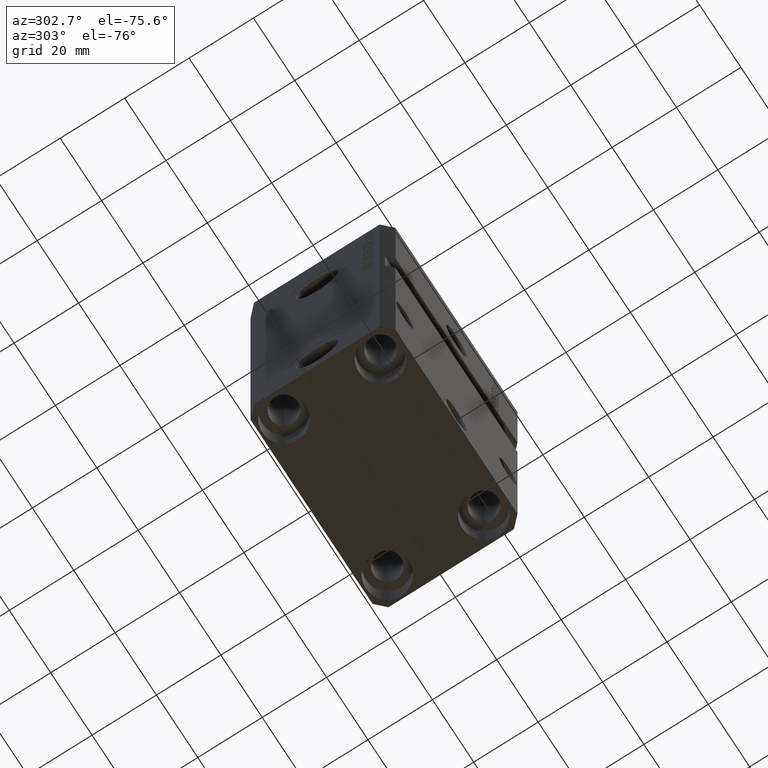
[diagram: clean part render]
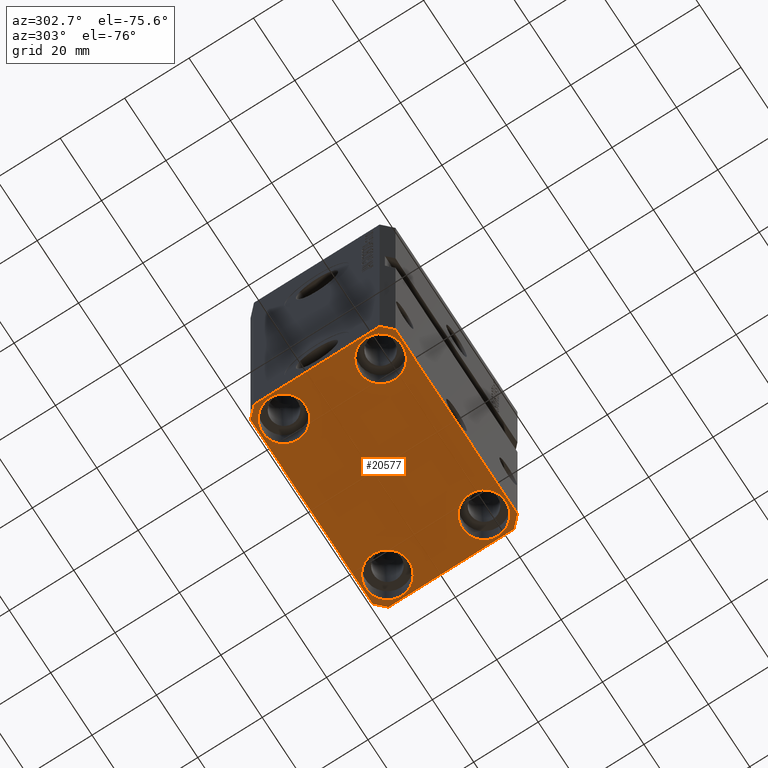
[diagram: same view with one face highlighted and labeled with its STEP entity id]
A machine part, auxiliary view. The second image highlights one B-rep face of the part: STEP entity #20577.
In plain terms, the highlighted planar face has unit normal (0, 0, 1).
Its self-contained STEP definition (entity closure, byte-faithful):
#287 = EDGE_CURVE ( 'NONE', #46769, #42714, #3144, .T. ) ;
#647 = FACE_BOUND ( 'NONE', #47999, .T. ) ;
#694 = CARTESIAN_POINT ( 'NONE',  ( 25.00000000000000355, -15.00000000000000000, -107.0000000000000000 ) ) ;
#1285 = VERTEX_POINT ( 'NONE', #27309 ) ;
#1370 = FACE_BOUND ( 'NONE', #1523, .T. ) ;
#1457 = ORIENTED_EDGE ( 'NONE', *, *, #22915, .T. ) ;
#1515 = VECTOR ( 'NONE', #5838, 1000.000000000000000 ) ;
#1523 = EDGE_LOOP ( 'NONE', ( #18083, #28174 ) ) ;
#1788 = ORIENTED_EDGE ( 'NONE', *, *, #287, .F. ) ;
#1805 = CIRCLE ( 'NONE', #40816, 6.749999999958452790 ) ;
#2362 = LINE ( 'NONE', #41406, #26482 ) ;
#2845 = DIRECTION ( 'NONE',  ( 1.000000000000000000, 0.000000000000000000, 0.000000000000000000 ) ) ;
#3144 = LINE ( 'NONE', #6559, #31028 ) ;
#3609 = EDGE_CURVE ( 'NONE', #20601, #32889, #42252, .T. ) ;
#3887 = DIRECTION ( 'NONE',  ( 1.000000000000000000, 0.000000000000000000, 0.000000000000000000 ) ) ;
#4001 = CARTESIAN_POINT ( 'NONE',  ( -32.49999999999650413, 19.49999999999949907, -107.0000000000000000 ) ) ;
#4002 = CARTESIAN_POINT ( 'NONE',  ( 32.49999999999702993, 19.49999999999945999, -107.0000000000000000 ) ) ;
#4360 = DIRECTION ( 'NONE',  ( 1.000000000000000000, 0.000000000000000000, 0.000000000000000000 ) ) ;
#5788 = CARTESIAN_POINT ( 'NONE',  ( 25.00000000000000355, -15.00000000000000000, -107.0000000000000000 ) ) ;
#5838 = DIRECTION ( 'NONE',  ( 1.000000000000000000, 1.176083712526788232E-16, 0.000000000000000000 ) ) ;
#6319 = EDGE_CURVE ( 'NONE', #1285, #17696, #1805, .T. ) ;
#6559 = CARTESIAN_POINT ( 'NONE',  ( 29.49999999999707967, 22.49999999999951328, -107.0000000000000000 ) ) ;
#6750 = DIRECTION ( 'NONE',  ( -0.000000000000000000, -0.000000000000000000, 1.000000000000000000 ) ) ;
#7426 = LINE ( 'NONE', #4002, #36239 ) ;
#7542 = CARTESIAN_POINT ( 'NONE',  ( 24.99999999999999645, 15.00000000000000888, -107.0000000000000000 ) ) ;
#7545 = DIRECTION ( 'NONE',  ( 1.334402673828349134E-14, 1.000000000000000000, 0.000000000000000000 ) ) ;
#7977 = CARTESIAN_POINT ( 'NONE',  ( 18.25000000004154543, 15.00000000000000888, -107.0000000000000000 ) ) ;
#8045 = EDGE_LOOP ( 'NONE', ( #1788, #44240, #31018, #39719, #14926, #8434, #28606, #43316 ) ) ;
#8157 = EDGE_LOOP ( 'NONE', ( #36315, #12707 ) ) ;
#8311 = CARTESIAN_POINT ( 'NONE',  ( -29.49999999999650413, -22.49999999999949907, -107.0000000000000000 ) ) ;
#8330 = EDGE_CURVE ( 'NONE', #13428, #46769, #7426, .T. ) ;
#8407 = EDGE_CURVE ( 'NONE', #42905, #41328, #43225, .T. ) ;
#8434 = ORIENTED_EDGE ( 'NONE', *, *, #9439, .F. ) ;
#9439 = EDGE_CURVE ( 'NONE', #19585, #15246, #28741, .T. ) ;
#9825 = CARTESIAN_POINT ( 'NONE',  ( -25.00000000000000355, 15.00000000000000000, -107.0000000000000000 ) ) ;
#9864 = ORIENTED_EDGE ( 'NONE', *, *, #28242, .T. ) ;
#10007 = AXIS2_PLACEMENT_3D ( 'NONE', #5788, #6750, #17726 ) ;
#10151 = DIRECTION ( 'NONE',  ( 1.000000000000000000, 0.000000000000000000, 0.000000000000000000 ) ) ;
#10439 = AXIS2_PLACEMENT_3D ( 'NONE', #28499, #47546, #2845 ) ;
#10608 = EDGE_CURVE ( 'NONE', #17696, #1285, #26919, .T. ) ;
#11105 = VERTEX_POINT ( 'NONE', #13459 ) ;
#11118 = CIRCLE ( 'NONE', #27532, 6.750000000041541881 ) ;
#11432 = LINE ( 'NONE', #41249, #47027 ) ;
#11606 = DIRECTION ( 'NONE',  ( -0.000000000000000000, -0.000000000000000000, 1.000000000000000000 ) ) ;
#11664 = CARTESIAN_POINT ( 'NONE',  ( -25.00000000000000355, -15.00000000000000000, -107.0000000000000000 ) ) ;
#11859 = PLANE ( 'NONE',  #22428 ) ;
#12311 = VECTOR ( 'NONE', #18886, 1000.000000000000000 ) ;
#12322 = DIRECTION ( 'NONE',  ( 1.000000000000000000, 0.000000000000000000, 0.000000000000000000 ) ) ;
#12707 = ORIENTED_EDGE ( 'NONE', *, *, #6319, .T. ) ;
#12979 = CARTESIAN_POINT ( 'NONE',  ( 32.49999999999651124, -19.49999999999949196, -107.0000000000000000 ) ) ;
#13219 = CARTESIAN_POINT ( 'NONE',  ( -31.75000000004154899, -15.00000000000000000, -107.0000000000000000 ) ) ;
#13428 = VERTEX_POINT ( 'NONE', #18563 ) ;
#13459 = CARTESIAN_POINT ( 'NONE',  ( 31.74999999997746869, -15.00000000000000000, -107.0000000000000000 ) ) ;
#14774 = DIRECTION ( 'NONE',  ( 0.7071067811865483499, 0.7071067811865466846, 0.000000000000000000 ) ) ;
#14926 = ORIENTED_EDGE ( 'NONE', *, *, #27701, .F. ) ;
#15246 = VERTEX_POINT ( 'NONE', #8311 ) ;
#16248 = FACE_BOUND ( 'NONE', #37148, .T. ) ;
#16331 = CARTESIAN_POINT ( 'NONE',  ( -29.49999999999650413, -22.49999999999949907, -107.0000000000000000 ) ) ;
#17438 = EDGE_CURVE ( 'NONE', #42714, #38983, #33466, .T. ) ;
#17696 = VERTEX_POINT ( 'NONE', #7977 ) ;
#17726 = DIRECTION ( 'NONE',  ( 1.000000000000000000, 0.000000000000000000, 0.000000000000000000 ) ) ;
#18083 = ORIENTED_EDGE ( 'NONE', *, *, #8407, .T. ) ;
#18563 = CARTESIAN_POINT ( 'NONE',  ( 32.49999999999702993, 19.49999999999945999, -107.0000000000000000 ) ) ;
#18612 = CARTESIAN_POINT ( 'NONE',  ( -18.24999999995845812, -15.00000000000000000, -107.0000000000000000 ) ) ;
#18886 = DIRECTION ( 'NONE',  ( 0.000000000000000000, -1.000000000000000000, 0.000000000000000000 ) ) ;
#19430 = AXIS2_PLACEMENT_3D ( 'NONE', #24828, #43875, #10151 ) ;
#19446 = FACE_BOUND ( 'NONE', #8157, .T. ) ;
#19576 = VERTEX_POINT ( 'NONE', #43838 ) ;
#19585 = VERTEX_POINT ( 'NONE', #36518 ) ;
#20410 = CARTESIAN_POINT ( 'NONE',  ( 29.49999999999707967, 22.49999999999951328, -107.0000000000000000 ) ) ;
#20577 = ADVANCED_FACE ( 'NONE', ( #1370, #16248, #19446, #647, #30447 ), #11859, .F. ) ;
#20601 = VERTEX_POINT ( 'NONE', #24320 ) ;
#21192 = AXIS2_PLACEMENT_3D ( 'NONE', #9825, #46485, #27450 ) ;
#21767 = CIRCLE ( 'NONE', #41265, 6.749999999977465137 ) ;
#22428 = AXIS2_PLACEMENT_3D ( 'NONE', #26781, #34377, #31652 ) ;
#22915 = EDGE_CURVE ( 'NONE', #11105, #19576, #33430, .T. ) ;
#23923 = LINE ( 'NONE', #16331, #1515 ) ;
#24058 = EDGE_CURVE ( 'NONE', #19576, #11105, #21767, .T. ) ;
#24320 = CARTESIAN_POINT ( 'NONE',  ( -31.75000000002253842, 15.00000000000000000, -107.0000000000000000 ) ) ;
#24828 = CARTESIAN_POINT ( 'NONE',  ( -25.00000000000000355, 15.00000000000000000, -107.0000000000000000 ) ) ;
#26140 = AXIS2_PLACEMENT_3D ( 'NONE', #30436, #11606, #12322 ) ;
#26227 = DIRECTION ( 'NONE',  ( -0.7071067811865352493, 0.7071067811865597852, 0.000000000000000000 ) ) ;
#26245 = VECTOR ( 'NONE', #48351, 1000.000000000000114 ) ;
#26482 = VECTOR ( 'NONE', #14774, 1000.000000000000000 ) ;
#26781 = CARTESIAN_POINT ( 'NONE',  ( 0.000000000000000000, 0.000000000000000000, -107.0000000000000000 ) ) ;
#26827 = DIRECTION ( 'NONE',  ( -0.000000000000000000, -0.000000000000000000, 1.000000000000000000 ) ) ;
#26919 = CIRCLE ( 'NONE', #26140, 6.749999999958452790 ) ;
#26966 = CARTESIAN_POINT ( 'NONE',  ( -29.49999999999650413, 22.49999999999949907, -107.0000000000000000 ) ) ;
#27309 = CARTESIAN_POINT ( 'NONE',  ( 31.74999999995845101, 15.00000000000000888, -107.0000000000000000 ) ) ;
#27450 = DIRECTION ( 'NONE',  ( 1.000000000000000000, 0.000000000000000000, 0.000000000000000000 ) ) ;
#27532 = AXIS2_PLACEMENT_3D ( 'NONE', #11664, #37836, #4360 ) ;
#27701 = EDGE_CURVE ( 'NONE', #15246, #33616, #23923, .T. ) ;
#27895 = ORIENTED_EDGE ( 'NONE', *, *, #24058, .T. ) ;
#28174 = ORIENTED_EDGE ( 'NONE', *, *, #44470, .T. ) ;
#28242 = EDGE_CURVE ( 'NONE', #32889, #20601, #34276, .T. ) ;
#28301 = EDGE_CURVE ( 'NONE', #33616, #42884, #2362, .T. ) ;
#28499 = CARTESIAN_POINT ( 'NONE',  ( -25.00000000000000355, -15.00000000000000000, -107.0000000000000000 ) ) ;
#28606 = ORIENTED_EDGE ( 'NONE', *, *, #29998, .F. ) ;
#28741 = LINE ( 'NONE', #40454, #30784 ) ;
#29998 = EDGE_CURVE ( 'NONE', #38983, #19585, #36993, .T. ) ;
#30436 = CARTESIAN_POINT ( 'NONE',  ( 24.99999999999999645, 15.00000000000000888, -107.0000000000000000 ) ) ;
#30447 = FACE_OUTER_BOUND ( 'NONE', #8045, .T. ) ;
#30784 = VECTOR ( 'NONE', #33142, 1000.000000000000114 ) ;
#31018 = ORIENTED_EDGE ( 'NONE', *, *, #43429, .F. ) ;
#31028 = VECTOR ( 'NONE', #36381, 1000.000000000000000 ) ;
#31652 = DIRECTION ( 'NONE',  ( 1.000000000000000000, 0.000000000000000000, -0.000000000000000000 ) ) ;
#32889 = VERTEX_POINT ( 'NONE', #35857 ) ;
#33142 = DIRECTION ( 'NONE',  ( 0.7071067811865474617, -0.7071067811865474617, 0.000000000000000000 ) ) ;
#33408 = CARTESIAN_POINT ( 'NONE',  ( -32.49999999999650413, 19.49999999999949907, -107.0000000000000000 ) ) ;
#33430 = CIRCLE ( 'NONE', #10007, 6.749999999977465137 ) ;
#33466 = LINE ( 'NONE', #41024, #26245 ) ;
#33616 = VERTEX_POINT ( 'NONE', #41486 ) ;
#34276 = CIRCLE ( 'NONE', #19430, 6.750000000022533087 ) ;
#34377 = DIRECTION ( 'NONE',  ( 0.000000000000000000, 0.000000000000000000, 1.000000000000000000 ) ) ;
#35857 = CARTESIAN_POINT ( 'NONE',  ( -18.24999999997747224, 15.00000000000000000, -107.0000000000000000 ) ) ;
#36239 = VECTOR ( 'NONE', #26227, 1000.000000000000000 ) ;
#36315 = ORIENTED_EDGE ( 'NONE', *, *, #10608, .T. ) ;
#36381 = DIRECTION ( 'NONE',  ( -1.000000000000000000, -2.352167425053553784E-16, 0.000000000000000000 ) ) ;
#36518 = CARTESIAN_POINT ( 'NONE',  ( -32.49999999999650413, -19.49999999999949907, -107.0000000000000000 ) ) ;
#36993 = LINE ( 'NONE', #4001, #12311 ) ;
#37148 = EDGE_LOOP ( 'NONE', ( #27895, #1457 ) ) ;
#37358 = DIRECTION ( 'NONE',  ( -0.000000000000000000, -0.000000000000000000, 1.000000000000000000 ) ) ;
#37836 = DIRECTION ( 'NONE',  ( -0.000000000000000000, -0.000000000000000000, 1.000000000000000000 ) ) ;
#38983 = VERTEX_POINT ( 'NONE', #33408 ) ;
#39719 = ORIENTED_EDGE ( 'NONE', *, *, #28301, .F. ) ;
#40454 = CARTESIAN_POINT ( 'NONE',  ( -32.49999999999650413, -19.49999999999949907, -107.0000000000000000 ) ) ;
#40816 = AXIS2_PLACEMENT_3D ( 'NONE', #7542, #37358, #3887 ) ;
#41024 = CARTESIAN_POINT ( 'NONE',  ( -29.49999999999650413, 22.49999999999949907, -107.0000000000000000 ) ) ;
#41249 = CARTESIAN_POINT ( 'NONE',  ( 32.49999999999651124, -19.49999999999949196, -107.0000000000000000 ) ) ;
#41265 = AXIS2_PLACEMENT_3D ( 'NONE', #694, #26827, #41725 ) ;
#41328 = VERTEX_POINT ( 'NONE', #18612 ) ;
#41406 = CARTESIAN_POINT ( 'NONE',  ( 29.49999999999650413, -22.49999999999949196, -107.0000000000000000 ) ) ;
#41486 = CARTESIAN_POINT ( 'NONE',  ( 29.49999999999650413, -22.49999999999949196, -107.0000000000000000 ) ) ;
#41725 = DIRECTION ( 'NONE',  ( 1.000000000000000000, 0.000000000000000000, 0.000000000000000000 ) ) ;
#42252 = CIRCLE ( 'NONE', #21192, 6.750000000022533087 ) ;
#42714 = VERTEX_POINT ( 'NONE', #26966 ) ;
#42824 = ORIENTED_EDGE ( 'NONE', *, *, #3609, .T. ) ;
#42884 = VERTEX_POINT ( 'NONE', #12979 ) ;
#42905 = VERTEX_POINT ( 'NONE', #13219 ) ;
#43225 = CIRCLE ( 'NONE', #10439, 6.750000000041541881 ) ;
#43316 = ORIENTED_EDGE ( 'NONE', *, *, #17438, .F. ) ;
#43429 = EDGE_CURVE ( 'NONE', #42884, #13428, #11432, .T. ) ;
#43838 = CARTESIAN_POINT ( 'NONE',  ( 18.25000000002253842, -15.00000000000000000, -107.0000000000000000 ) ) ;
#43875 = DIRECTION ( 'NONE',  ( -0.000000000000000000, -0.000000000000000000, 1.000000000000000000 ) ) ;
#44240 = ORIENTED_EDGE ( 'NONE', *, *, #8330, .F. ) ;
#44470 = EDGE_CURVE ( 'NONE', #41328, #42905, #11118, .T. ) ;
#46485 = DIRECTION ( 'NONE',  ( -0.000000000000000000, -0.000000000000000000, 1.000000000000000000 ) ) ;
#46769 = VERTEX_POINT ( 'NONE', #20410 ) ;
#47027 = VECTOR ( 'NONE', #7545, 1000.000000000000000 ) ;
#47546 = DIRECTION ( 'NONE',  ( -0.000000000000000000, -0.000000000000000000, 1.000000000000000000 ) ) ;
#47999 = EDGE_LOOP ( 'NONE', ( #42824, #9864 ) ) ;
#48351 = DIRECTION ( 'NONE',  ( -0.7071067811865474617, -0.7071067811865474617, 0.000000000000000000 ) ) ;